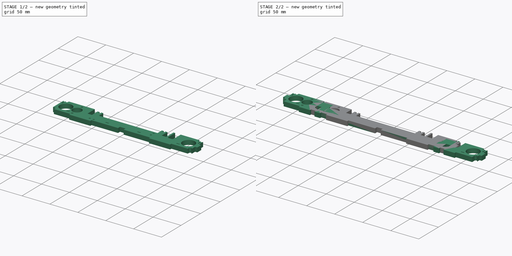
[diagram: build sequence overview — one tinted view per stage of 2, left to right]
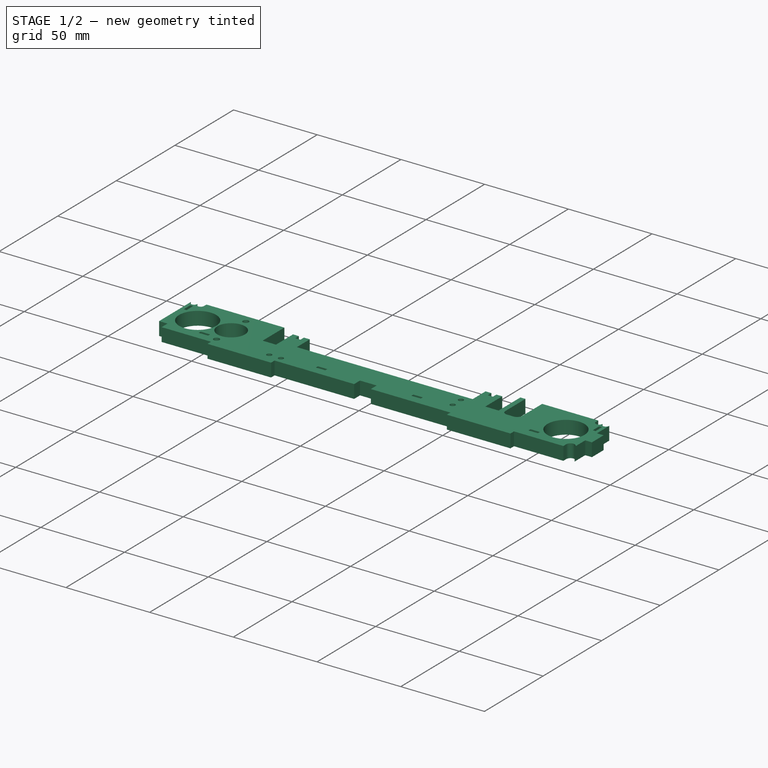
[diagram: stage 1 of 2 — iso view after this stage's code; geometry added in this stage tinted green]
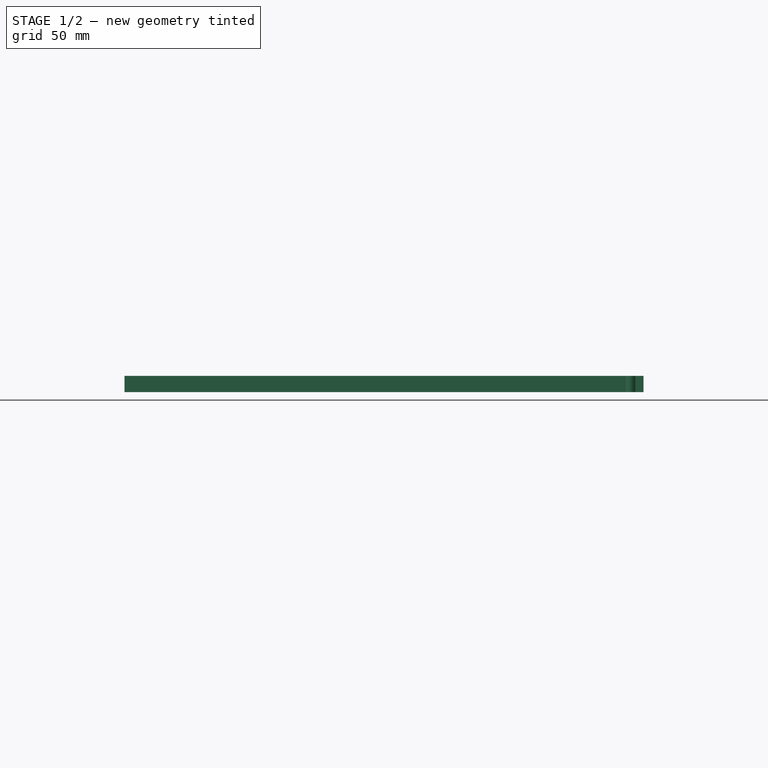
[diagram: stage 1 of 2 — front view after this stage's code; geometry added in this stage tinted green]
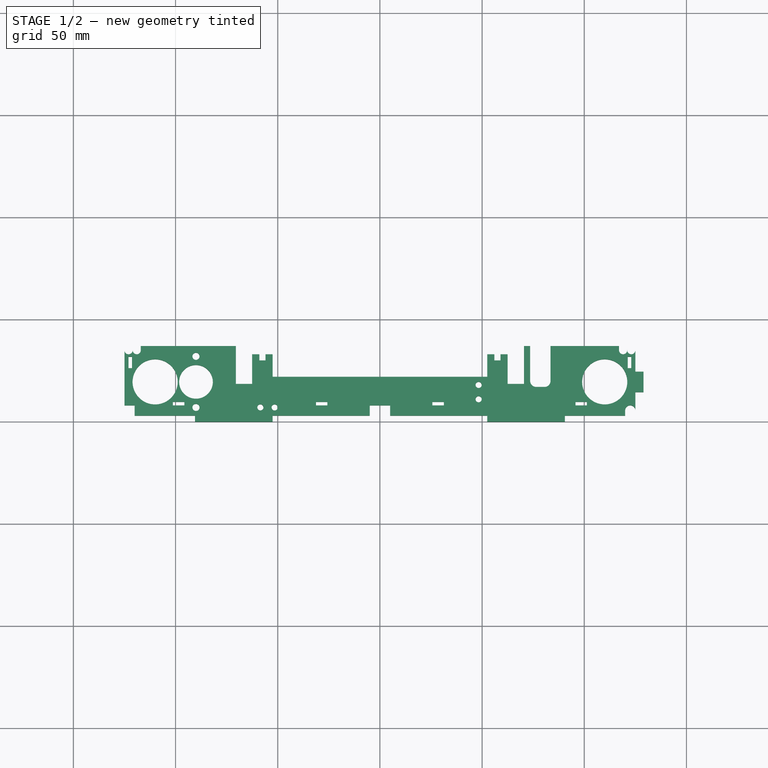
[diagram: stage 1 of 2 — top view after this stage's code; geometry added in this stage tinted green]
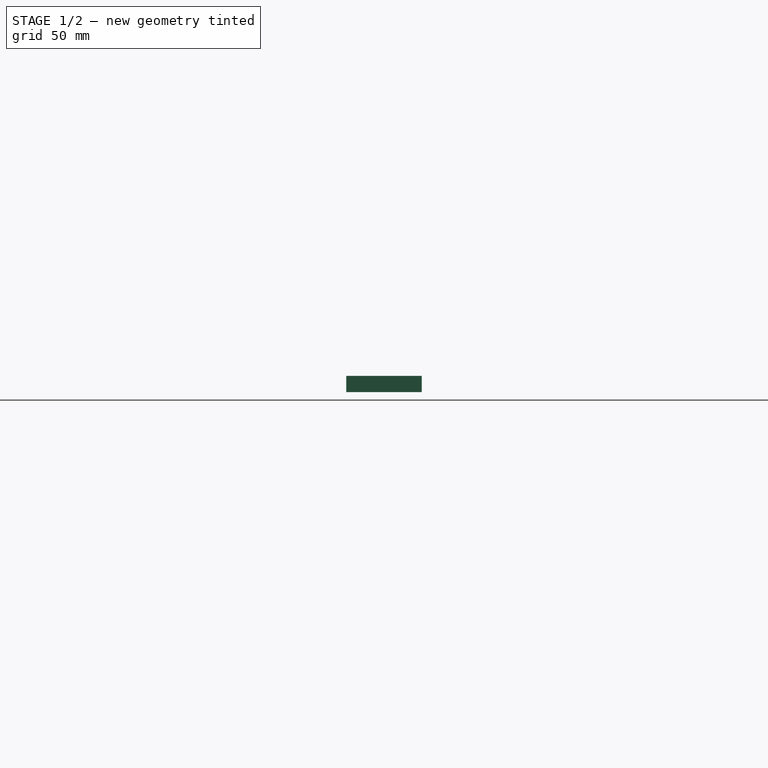
[diagram: stage 1 of 2 — right view after this stage's code; geometry added in this stage tinted green]
FCSTD DOCUMENT  (FreeCAD 0.19R24366 (Git))
Label: ri_scroll-supports-right
License: All rights reserved
LicenseURL: http://en.wikipedia.org/wiki/All_rights_reserved
objects: Sketcher::SketchObject×3, PartDesign::Pad×2, PartDesign::Body×2, App::Part×2, Part::Part2DObjectPython×1
note: 10 computed .brp shape members not serialized (recipe doc carries the construction recipe); baked Part::Feature solids carry a one-line shape summary decoded from their .brp

FEATURE [PartDesign::Body] Body  label="short-scroll"
  Group = -> [Sketch,Pad]
  Origin = -> Origin
  Placement = pos=(1,0,0) rot=(0,0,1;0rad)
  Tip = -> Pad
FEATURE [Sketcher::SketchObject] Sketch001
  FullyConstrained = true
  MapMode = 5
  Support = -> [XY_Plane001]
  sketch-geometry (101):
    g0: LineSegment StartX=125 StartY=35 StartZ=0 EndX=125 EndY=24.5 EndZ=0
    g1: LineSegment StartX=52.5 StartY=33 StartZ=0 EndX=52.5 EndY=22 EndZ=0
    g2: LineSegment StartX=52.5 StartY=22 StartZ=0 EndX=-52.5 EndY=22 EndZ=0
    g3: LineSegment StartX=-52.5 StartY=22 StartZ=0 EndX=-52.5 EndY=33 EndZ=0
    g4: LineSegment StartX=-62.5 StartY=33 StartZ=0 EndX=-62.5 EndY=18.5 EndZ=0
    g5: LineSegment StartX=-62.5 StartY=18.5 StartZ=0 EndX=-70.5 EndY=18.5 EndZ=0
    g6: LineSegment StartX=-70.5 StartY=18.5 StartZ=0 EndX=-70.5 EndY=37 EndZ=0
    g7: LineSegment StartX=70.5 StartY=37 StartZ=0 EndX=70.5 EndY=18.5 EndZ=0
    g8: LineSegment StartX=70.5 StartY=18.5 StartZ=0 EndX=62.5 EndY=18.5 EndZ=0
    g9: LineSegment StartX=62.5 StartY=18.5 StartZ=0 EndX=62.5 EndY=33 EndZ=0
    g10: Circle CenterX=-110 CenterY=19.5 CenterZ=0 NormalX=0 NormalY=0 NormalZ=1 AngleXU=0 Radius=11.05
    g11: Circle CenterX=110 CenterY=19.5 CenterZ=0 NormalX=0 NormalY=0 NormalZ=1 AngleXU=0 Radius=11.05
    g12: GeomPoint X=0 Y=22 Z=0
    g13: Circle CenterX=-90 CenterY=19.5 CenterZ=0 NormalX=0 NormalY=0 NormalZ=1 AngleXU=0 Radius=8.25
    g14: Circle CenterX=-90 CenterY=32 CenterZ=0 NormalX=0 NormalY=0 NormalZ=1 AngleXU=0 Radius=1.75
    g15: Circle CenterX=-90 CenterY=7 CenterZ=0 NormalX=0 NormalY=0 NormalZ=1 AngleXU=0 Radius=1.75
    g16: LineSegment StartX=125 StartY=24.5 StartZ=0 EndX=129 EndY=24.5 EndZ=0
    g17: LineSegment StartX=129 StartY=24.5 StartZ=0 EndX=129 EndY=14.5 EndZ=0
    g18: LineSegment StartX=129 StartY=14.5 StartZ=0 EndX=125 EndY=14.5 EndZ=0
    g19: LineSegment StartX=125 StartY=14.5 StartZ=0 EndX=125 EndY=5.5 EndZ=0
    g20: LineSegment StartX=-52.5 StartY=0 StartZ=0 EndX=-52.5 EndY=3 EndZ=0
    g21: LineSegment StartX=-52.5 StartY=3 StartZ=0 EndX=-5 EndY=3 EndZ=0
    g22: LineSegment StartX=52.5 StartY=3 StartZ=0 EndX=52.5 EndY=0 EndZ=0
    g23: LineSegment StartX=-5 StartY=3 StartZ=0 EndX=-5 EndY=8 EndZ=0
    g24: LineSegment StartX=-5 StartY=8 StartZ=0 EndX=5 EndY=8 EndZ=0
    g25: LineSegment StartX=5 StartY=8 StartZ=0 EndX=5 EndY=3 EndZ=0
    g26: LineSegment StartX=5 StartY=3 StartZ=0 EndX=52.5 EndY=3 EndZ=0
    g27: LineSegment StartX=-120 StartY=8 StartZ=0 EndX=-120 EndY=3 EndZ=0
    g28: LineSegment StartX=120 StartY=3 StartZ=0 EndX=120 EndY=5.5 EndZ=0
    g29: LineSegment StartX=-62.5 StartY=33 StartZ=0 EndX=-59 EndY=33 EndZ=0
    g30: LineSegment StartX=-59 StartY=33 StartZ=0 EndX=-59 EndY=30 EndZ=0
    g31: LineSegment StartX=-59 StartY=30 StartZ=0 EndX=-56 EndY=30 EndZ=0
    g32: LineSegment StartX=-56 StartY=30 StartZ=0 EndX=-56 EndY=33 EndZ=0
    g33: LineSegment StartX=-56 StartY=33 StartZ=0 EndX=-52.5 EndY=33 EndZ=0
    g34: LineSegment StartX=52.5 StartY=33 StartZ=0 EndX=56 EndY=33 EndZ=0
    g35: LineSegment StartX=56 StartY=33 StartZ=0 EndX=56 EndY=30 EndZ=0
    g36: LineSegment StartX=56 StartY=30 StartZ=0 EndX=59 EndY=30 EndZ=0
    g37: LineSegment StartX=59 StartY=30 StartZ=0 EndX=59 EndY=33 EndZ=0
    g38: LineSegment StartX=59 StartY=33 StartZ=0 EndX=62.5 EndY=33 EndZ=0
    g39: LineSegment StartX=70.5 StartY=37 StartZ=0 EndX=73.5 EndY=37 EndZ=0
    g40: LineSegment StartX=73.5 StartY=37 StartZ=0 EndX=73.5 EndY=20 EndZ=0
    g41: LineSegment StartX=76.5 StartY=17 StartZ=0 EndX=80.5 EndY=17 EndZ=0
    g42: LineSegment StartX=83.5 StartY=20 StartZ=0 EndX=83.5 EndY=37 EndZ=0
    g43: ArcOfCircle CenterX=80.5 CenterY=20 CenterZ=0 NormalX=0 NormalY=0 NormalZ=1 AngleXU=0 Radius=3 StartAngle=4.71239 EndAngle=6.28319
    g44: GeomPoint X=83.5 Y=17 Z=0
    g45: ArcOfCircle CenterX=76.5 CenterY=20 CenterZ=0 NormalX=0 NormalY=0 NormalZ=1 AngleXU=0 Radius=3 StartAngle=3.14159 EndAngle=4.71239
    g46: GeomPoint X=73.5 Y=17 Z=0
    g47: LineSegment StartX=-70.5 StartY=37 StartZ=0 EndX=-117 EndY=37 EndZ=0
    g48: LineSegment StartX=-117 StartY=37 StartZ=0 EndX=-117 EndY=35 EndZ=0
    g49: LineSegment StartX=-125 StartY=24.5 StartZ=0 EndX=-125 EndY=35 EndZ=0
    g50: ArcOfCircle CenterX=-123 CenterY=35 CenterZ=0 NormalX=0 NormalY=0 NormalZ=1 AngleXU=0 Radius=2 StartAngle=3.14159 EndAngle=6.28319
    g51: ArcOfCircle CenterX=-119 CenterY=35 CenterZ=0 NormalX=0 NormalY=0 NormalZ=1 AngleXU=0 Radius=2 StartAngle=3.14159 EndAngle=6.28319
    g52: LineSegment StartX=83.5 StartY=37 StartZ=0 EndX=117 EndY=37 EndZ=0
    g53: ArcOfCircle CenterX=123 CenterY=35 CenterZ=0 NormalX=0 NormalY=0 NormalZ=1 AngleXU=0 Radius=2 StartAngle=3.14159 EndAngle=6.28319
    g54: ArcOfCircle CenterX=119 CenterY=35 CenterZ=0 NormalX=0 NormalY=0 NormalZ=1 AngleXU=0 Radius=2 StartAngle=3.14159 EndAngle=6.28319
    g55: LineSegment StartX=117 StartY=37 StartZ=0 EndX=117 EndY=35 EndZ=0
    g56: ArcOfCircle CenterX=122.5 CenterY=5.5 CenterZ=0 NormalX=0 NormalY=0 NormalZ=1 AngleXU=0 Radius=2.5 StartAngle=6.28318 EndAngle=9.42478
    g57: LineSegment StartX=-123 StartY=31.8 StartZ=0 EndX=-121.3 EndY=31.8 EndZ=0
    g58: LineSegment StartX=-121.3 StartY=31.8 StartZ=0 EndX=-121.3 EndY=26.2 EndZ=0
    g59: LineSegment StartX=-121.3 StartY=26.2 StartZ=0 EndX=-123 EndY=26.2 EndZ=0
    g60: LineSegment StartX=-123 StartY=26.2 StartZ=0 EndX=-123 EndY=31.8 EndZ=0
    g61: LineSegment StartX=121.3 StartY=31.8 StartZ=0 EndX=123 EndY=31.8 EndZ=0
    g62: LineSegment StartX=123 StartY=31.8 StartZ=0 EndX=123 EndY=26.2 EndZ=0
    g63: LineSegment StartX=123 StartY=26.2 StartZ=0 EndX=121.3 EndY=26.2 EndZ=0
    g64: LineSegment StartX=121.3 StartY=26.2 StartZ=0 EndX=121.3 EndY=31.8 EndZ=0
    g65: LineSegment StartX=52.5 StartY=0 StartZ=0 EndX=90.5 EndY=0 EndZ=0
    g66: LineSegment StartX=90.5 StartY=0 StartZ=0 EndX=90.5 EndY=3 EndZ=0
    g67: LineSegment StartX=90.5 StartY=3 StartZ=0 EndX=120 EndY=3 EndZ=0
    g68: LineSegment StartX=95.7 StartY=9.7 StartZ=0 EndX=101.3 EndY=9.7 EndZ=0
    g69: LineSegment StartX=101.3 StartY=9.7 StartZ=0 EndX=101.3 EndY=8 EndZ=0
    g70: LineSegment StartX=101.3 StartY=8 StartZ=0 EndX=95.7 EndY=8 EndZ=0
    g71: LineSegment StartX=95.7 StartY=8 StartZ=0 EndX=95.7 EndY=9.7 EndZ=0
    g72: LineSegment StartX=-52.5 StartY=0 StartZ=0 EndX=-90.5 EndY=0 EndZ=0
    g73: LineSegment StartX=-90.5 StartY=0 StartZ=0 EndX=-90.5 EndY=3 EndZ=0
    g74: LineSegment StartX=-90.5 StartY=3 StartZ=0 EndX=-120 EndY=3 EndZ=0
    g75: LineSegment StartX=-101.3 StartY=9.7 StartZ=0 EndX=-95.7 EndY=9.7 EndZ=0
    g76: LineSegment StartX=-95.7 StartY=9.7 StartZ=0 EndX=-95.7 EndY=8 EndZ=0
    g77: LineSegment StartX=-95.7 StartY=8 StartZ=0 EndX=-101.3 EndY=8 EndZ=0
    g78: LineSegment StartX=-101.3 StartY=8 StartZ=0 EndX=-101.3 EndY=9.7 EndZ=0
    g79: GeomPoint X=-98.5 Y=8 Z=0
    g80: GeomPoint X=98.5 Y=8 Z=0
    g81: LineSegment StartX=-31.3 StartY=9.7 StartZ=0 EndX=-25.7 EndY=9.7 EndZ=0
    g82: LineSegment StartX=-25.7 StartY=9.7 StartZ=0 EndX=-25.7 EndY=8 EndZ=0
    g83: LineSegment StartX=-25.7 StartY=8 StartZ=0 EndX=-31.3 EndY=8 EndZ=0
    g84: LineSegment StartX=-31.3 StartY=8 StartZ=0 EndX=-31.3 EndY=9.7 EndZ=0
    g85: GeomPoint X=-28.5 Y=8 Z=0
    g86: LineSegment StartX=25.7 StartY=9.7 StartZ=0 EndX=31.3 EndY=9.7 EndZ=0
    g87: LineSegment StartX=31.3 StartY=9.7 StartZ=0 EndX=31.3 EndY=8 EndZ=0
    g88: LineSegment StartX=31.3 StartY=8 StartZ=0 EndX=25.7 EndY=8 EndZ=0
    g89: LineSegment StartX=25.7 StartY=8 StartZ=0 EndX=25.7 EndY=9.7 EndZ=0
    g90: GeomPoint X=28.5 Y=8 Z=0
    g91: GeomPoint X=-123 Y=29 Z=0
    g92: GeomPoint X=123 Y=29 Z=0
    g93: Circle CenterX=-58.5 CenterY=7 CenterZ=0 NormalX=0 NormalY=0 NormalZ=1 AngleXU=0 Radius=1.5
    g94: Circle CenterX=-51.5 CenterY=7 CenterZ=0 NormalX=0 NormalY=0 NormalZ=1 AngleXU=0 Radius=1.5
    g95: Circle CenterX=48.3 CenterY=18 CenterZ=0 NormalX=0 NormalY=0 NormalZ=1 AngleXU=0 Radius=1.5
    g96: Circle CenterX=48.3 CenterY=11 CenterZ=0 NormalX=0 NormalY=0 NormalZ=1 AngleXU=0 Radius=1.5
    g97: GeomPoint X=-55 Y=7 Z=0
    g98: GeomPoint X=48.3 Y=14.5 Z=0
    g99: LineSegment StartX=-125 StartY=24.5 StartZ=0 EndX=-125 EndY=8 EndZ=0
    g100: LineSegment StartX=-125 StartY=8 StartZ=0 EndX=-120 EndY=8 EndZ=0
  constraints (274):
    c: Vertical(g0)
    c: Coincident(g1,g2)
    c: Coincident(g2,g3)
    c: Horizontal(g2)
    c: Vertical(g1)
    c: Vertical(g3)
    c: Coincident(g4,g5)
    c: Coincident(g5,g6)
    c: Horizontal(g5)
    c: Vertical(g4)
    c: Vertical(g6)
    c: Coincident(g7,g8)
    c: Coincident(g8,g9)
    c: Horizontal(g8)
    c: Vertical(g7)
    c: Vertical(g9)
    c: Equal(g5,g8)
    c: DistanceX(g8,g8) = 8
    c: DistanceY(g7,g7) = 18.5
    c: Equal(g10,g11)
    c: Diameter(g11) = 22.1
    c: DistanceX(g11,g0) = 15
    c: DistanceY(g11,g10) = 0
    c: DistanceX(g2,g2) = 105
    c: DistanceX(g4,g3) = 10
    c: Symmetric(g2,g1,g12)
    c: Diameter(g13) = 16.5
    c: Diameter(g14) = 3.5
    c: Symmetric(g15,g14,g13)
    c: DistanceX(g10,g13) = 20
    c: DistanceX(g10,g14) = 20
    c: Coincident(g16,g17)
    c: Coincident(g17,g18)
    c: Horizontal(g16)
    c: Horizontal(g18)
    c: Vertical(g17)
    c: DistanceX(g16,g16) = 4
    c: DistanceY(g17,g17) = 10
    c: DistanceY(g16,g0) = 10.5
    c: Coincident(g0,g16)
    c: Coincident(g18,g19)
    c: Vertical(g20)
    c: Coincident(g20,g21)
    c: Horizontal(g21)
    c: Coincident(g26,g22)
    c: DistanceY(g22,g22) = 3
    c: Symmetric(g22,g20,g-1)
    c: Vertical(g23)
    c: Coincident(g23,g24)
    c: Horizontal(g24)
    c: Coincident(g24,g25)
    c: Vertical(g25)
    c: Symmetric(g25,g23,g-2)
    c: DistanceY(g25,g25) = 5
    c: DistanceX(g24,g24) = 10
    c: Coincident(g21,g23)
    c: PointOnObject(g26,g25)
    c: Tangent(g21,g26)
    c: Vertical(g27)
    c: Vertical(g28)
    c: DistanceX(g28,g19) = 5
    c: DistanceY(g28,g28) = 2.5
    c: Symmetric(g27,g28,g-2)
    c: DistanceX(g49,g10) = 15
    c: DistanceY(g13,g10) = 0
    c: DistanceY(g15,g14) = 25
    c: Tangent(g22,g1)
    c: Tangent(g19,g0)
    c: DistanceY(g4,g6) = 4
    c: DistanceY(g4,g3) = 0
    c: Equal(g6,g7)
    c: Equal(g1,g3)
    c: DistanceY(g1,g9) = 0
    c: Equal(g9,g4)
    c: Equal(g15,g14)
    c: Coincident(g4,g29)
    c: Horizontal(g29)
    c: Coincident(g29,g30)
    c: Vertical(g30)
    c: Coincident(g30,g31)
    c: Horizontal(g31)
    c: Coincident(g31,g32)
    c: Vertical(g32)
    c: Coincident(g32,g33)
    c: Coincident(g33,g3)
    c: Horizontal(g33)
    c: DistanceX(g31,g31) = 3
    c: Equal(g31,g30)
    c: Equal(g33,g29)
    c: Coincident(g1,g34)
    c: Horizontal(g34)
    c: Coincident(g34,g35)
    c: Vertical(g35)
    c: Coincident(g35,g36)
    c: Horizontal(g36)
    c: Coincident(g36,g37)
    c: Vertical(g37)
    c: Coincident(g37,g38)
    c: Coincident(g38,g9)
    c: Horizontal(g38)
    c: Equal(g35,g36)
    c: Equal(g37,g31)
    c: Equal(g38,g34)
    c: Equal(g34,g29)
    c: Coincident(g7,g39)
    c: Horizontal(g39)
    c: Coincident(g39,g40)
    c: Vertical(g40)
    c: Horizontal(g41)
    c: Vertical(g42)
    c: DistanceX(g39,g39) = 3
    c: DistanceY(g46,g1) = 5
    c: PointOnObject(g44,g41)
    c: PointOnObject(g44,g42)
    c: Tangent(g41,g43) = -1.5708
    c: Tangent(g42,g43) = -1.5708
    c: PointOnObject(g46,g40)
    c: PointOnObject(g46,g41)
    c: Tangent(g40,g45) = -1.5708
    c: Tangent(g41,g45) = -1.5708
    c: Radius(g43) = 3
    c: Equal(g45,g43)
    c: DistanceX(g40,g42) = 10
    c: Equal(g42,g40)
    c: Coincident(g6,g47)
    c: Horizontal(g47)
    c: Coincident(g48,g47)
    c: Vertical(g48)
    c: Vertical(g49)
    c: Horizontal(g49,g48)
    c: DistanceY(g48,g48) = 2
    c: Coincident(g51,g50)
    c: Radius(g50) = 2
    c: DistanceY(g49,g47) = 12.5
    c: Symmetric(g48,g49,g50)
    c: Tangent(g49,g50) = 1.5708
    c: Tangent(g51,g48) = 1.5708
    c: DistanceY(g17,g11) = 5
    c: Coincident(g52,g42)
    c: Horizontal(g52)
    c: Tangent(g53,g0) = 1.5708
    c: Coincident(g55,g52)
    c: Vertical(g55)
    c: Equal(g48,g55)
    c: Coincident(g54,g55)
    c: Symmetric(g0,g54,g53)
    c: Tangent(g54,g53) = 1.5708
    c: DistanceY(g28,g52) = 34
    c: Horizontal(g0,g53)
    c: Radius(g54) = 2
    c: Horizontal(g19,g28)
    c: Coincident(g56,g28)
    c: Coincident(g56,g19)
    c: Tangent(g28,g56)
    c: Coincident(g57,g58)
    c: Coincident(g58,g59)
    c: Coincident(g59,g60)
    c: Coincident(g60,g57)
    c: Horizontal(g57)
    c: Horizontal(g59)
    c: Vertical(g58)
    c: Vertical(g60)
    c: DistanceY(g58,g58) = 5.6
    c: DistanceX(g57,g57) = 1.7
    c: DistanceX(g49,g59) = 2
    c: Coincident(g61,g62)
    c: Coincident(g62,g63)
    c: Coincident(g63,g64)
    c: Coincident(g64,g61)
    c: Horizontal(g61)
    c: Horizontal(g63)
    c: Vertical(g62)
    c: Vertical(g64)
    c: Equal(g64,g58)
    c: Equal(g57,g61)
    c: DistanceX(g62,g0) = 2
    c: Coincident(g22,g65)
    c: PointOnObject(g65,g-1)
    c: Horizontal(g65)
    c: Coincident(g65,g66)
    c: Vertical(g66)
    c: Coincident(g66,g67)
    c: Horizontal(g67)
    c: Equal(g66,g22)
    c: Coincident(g67,g28)
    c: Coincident(g68,g69)
    c: Coincident(g69,g70)
    c: Coincident(g70,g71)
    c: Coincident(g71,g68)
    c: Horizontal(g68)
    c: Horizontal(g70)
    c: Vertical(g69)
    c: Vertical(g71)
    c: Equal(g62,g70)
    c: Equal(g63,g69)
    c: DistanceY(g28,g69) = 5
    c: Coincident(g20,g72)
    c: PointOnObject(g72,g-1)
    c: Coincident(g72,g73)
    c: Vertical(g73)
    c: Coincident(g73,g74)
    c: Coincident(g74,g27)
    c: Horizontal(g74)
    c: Coincident(g75,g76)
    c: Coincident(g76,g77)
    c: Coincident(g77,g78)
    c: Coincident(g78,g75)
    c: Horizontal(g75)
    c: Horizontal(g77)
    c: Vertical(g76)
    c: Vertical(g78)
    c: Equal(g77,g58)
    c: Equal(g78,g59)
    c: DistanceX(g7,g65) = 20
    c: DistanceX(g73,g5) = 20
    c: DistanceY(g73,g76) = 5
    c: DistanceY(g3,g3) = 11
    c: Symmetric(g77,g76,g79)
    c: Symmetric(g70,g69,g80)
    c: DistanceX(g66,g80) = 8
    c: DistanceX(g79,g73) = 8
    c: Vertical(g-1,g12)
    c: Coincident(g81,g82)
    c: Coincident(g82,g83)
    c: Coincident(g83,g84)
    c: Coincident(g84,g81)
    c: Horizontal(g81)
    c: Horizontal(g83)
    c: Vertical(g82)
    c: Vertical(g84)
    c: Symmetric(g83,g82,g85)
    c: Equal(g83,g75)
    c: Equal(g84,g78)
    c: DistanceX(g20,g85) = 24
    c: DistanceY(g20,g85) = 5
    c: Coincident(g86,g87)
    c: Coincident(g87,g88)
    c: Coincident(g88,g89)
    c: Coincident(g89,g86)
    c: Horizontal(g86)
    c: Horizontal(g88)
    c: Vertical(g87)
    c: Vertical(g89)
    c: Symmetric(g88,g87,g90)
    c: DistanceX(g90,g22) = 24
    c: DistanceY(g22,g90) = 5
    c: Equal(g89,g82)
    c: Equal(g88,g83)
    c: Symmetric(g57,g59,g91)
    c: DistanceY(g49,g91) = 4.5
    c: Symmetric(g62,g61,g92)
    c: DistanceY(g0,g92) = 4.5
    c: Diameter(g93) = 3
    c: Equal(g94,g93)
    c: Equal(g93,g96)
    c: Equal(g96,g95)
    c: Horizontal(g93,g97)
    c: Symmetric(g93,g94,g97)
    c: DistanceX(g93,g94) = 7
    c: DistanceY(g97,g2) = 15
    c: Vertical(g96,g98)
    c: Symmetric(g95,g96,g98)
    c: DistanceY(g96,g95) = 7
    c: DistanceY(g98,g1) = 7.5
    c: DistanceX(g4,g97) = 7.5
    c: DistanceX(g98,g8) = 14.2
    c: Coincident(g49,g99)
    c: Vertical(g99)
    c: Coincident(g99,g100)
    c: Horizontal(g100)
    c: Coincident(g27,g100)
    c: Equal(g27,g100)
    c: DistanceX(g100,g100) = 5
    c: DistanceX(g99,g19) = 250
FEATURE [PartDesign::Pad] Pad001
  Direction = (0,0,0)
  Length = 8
  Length2 = 100
  Profile = -> Sketch001
  Refine = true
  Type = 0
FEATURE [PartDesign::Body] Body001  label="long-scroll"
  Group = -> [Sketch001,Pad001]
  Origin = -> Origin001
  Placement = pos=(-12,0,133) rot=(0,1,0;1.5708rad)
  Tip = -> Pad001
FEATURE [App::Part] Part  label="verts"
  Group = -> [Body]
  Origin = -> Origin002
  Placement = pos=(218,-63,0) rot=(1,0,0;0rad)
FEATURE [App::Part] Part001  label="horz"
  Group = -> [Body001]
  Origin = -> Origin003
  Placement = pos=(112,0,0) rot=(1,0,0;0rad)
FEATURE [Part::Part2DObjectPython] Shape2DView  # Draft 2D object (typed FeaturePython)
  Base = -> Body001
  FuseArch = false
  HiddenLines = false
  InPlace = true
  Projection = (1,0,0)
  ProjectionMode = 0
  SegmentLength = 0.05
  Tessellation = false
  VisibleOnly = false
FEATURE [Sketcher::SketchObject] Sketch002
  FullyConstrained = false
  sketch-geometry (89):
    g0: LineSegment StartX=62.5 StartY=-37 StartZ=0 EndX=59.5 EndY=-37 EndZ=0
    g1: LineSegment StartX=59.5 StartY=-37 StartZ=0 EndX=59.5 EndY=-20 EndZ=0
    g2: ArcOfCircle CenterX=56.5 CenterY=-20 CenterZ=0 NormalX=0 NormalY=0 NormalZ=1 AngleXU=-3.14159 Radius=3 StartAngle=3.14159 EndAngle=4.71239
    g3: LineSegment StartX=56.5 StartY=-17 StartZ=0 EndX=52.5 EndY=-17 EndZ=0
    g4: ArcOfCircle CenterX=52.5 CenterY=-20 CenterZ=0 NormalX=0 NormalY=0 NormalZ=1 AngleXU=-3.14159 Radius=3 StartAngle=4.71239 EndAngle=6.28319
    g5: LineSegment StartX=49.5 StartY=-20 StartZ=0 EndX=49.5 EndY=-37 EndZ=0
    g6: LineSegment StartX=49.5 StartY=-37 StartZ=0 EndX=16 EndY=-37 EndZ=0
    g7: LineSegment StartX=16 StartY=-37 StartZ=0 EndX=16 EndY=-35 EndZ=0
    g8: ArcOfCircle CenterX=14 CenterY=-35 CenterZ=0 NormalX=0 NormalY=0 NormalZ=1 AngleXU=-3.14159 Radius=2 StartAngle=3.14159 EndAngle=6.28319
    g9: ArcOfCircle CenterX=10 CenterY=-35 CenterZ=0 NormalX=0 NormalY=0 NormalZ=1 AngleXU=-3.14159 Radius=2 StartAngle=3.14159 EndAngle=6.28319
    g10: LineSegment StartX=8 StartY=-35 StartZ=0 EndX=8 EndY=-24.5 EndZ=0
    g11: LineSegment StartX=8 StartY=-24.5 StartZ=0 EndX=4 EndY=-24.5 EndZ=0
    g12: LineSegment StartX=4 StartY=-24.5 StartZ=0 EndX=4 EndY=-14.5 EndZ=0
    g13: LineSegment StartX=4 StartY=-14.5 StartZ=0 EndX=8 EndY=-14.5 EndZ=0
    g14: LineSegment StartX=8 StartY=-14.5 StartZ=0 EndX=8 EndY=-5.5 EndZ=0
    g15: ArcOfCircle CenterX=10.5 CenterY=-5.5 CenterZ=0 NormalX=0 NormalY=0 NormalZ=1 AngleXU=-3.14159 Radius=2.5 StartAngle=-2.4e-14 EndAngle=3.14159
    g16: LineSegment StartX=13 StartY=-3 StartZ=0 EndX=13 EndY=-5.5 EndZ=0
    g17: LineSegment StartX=42.5 StartY=-3 StartZ=0 EndX=13 EndY=-3 EndZ=0
    g18: LineSegment StartX=42.5 StartY=0 StartZ=0 EndX=42.5 EndY=-3 EndZ=0
    g19: LineSegment StartX=80.5 StartY=0 StartZ=0 EndX=42.5 EndY=0 EndZ=0
    g20: LineSegment StartX=80.5 StartY=-3 StartZ=0 EndX=80.5 EndY=0 EndZ=0
    g21: LineSegment StartX=128 StartY=-3 StartZ=0 EndX=80.5 EndY=-3 EndZ=0
    g22: LineSegment StartX=128 StartY=-8 StartZ=0 EndX=128 EndY=-3 EndZ=0
    g23: LineSegment StartX=138 StartY=-8 StartZ=0 EndX=128 EndY=-8 EndZ=0
    g24: LineSegment StartX=138 StartY=-3 StartZ=0 EndX=138 EndY=-8 EndZ=0
    g25: LineSegment StartX=185.5 StartY=-3 StartZ=0 EndX=138 EndY=-3 EndZ=0
    g26: LineSegment StartX=185.5 StartY=0 StartZ=0 EndX=185.5 EndY=-3 EndZ=0
    g27: LineSegment StartX=185.5 StartY=0 StartZ=0 EndX=223.5 EndY=0 EndZ=0
    g28: LineSegment StartX=223.5 StartY=0 StartZ=0 EndX=223.5 EndY=-3 EndZ=0
    g29: LineSegment StartX=223.5 StartY=-3 StartZ=0 EndX=253 EndY=-3 EndZ=0
    g30: LineSegment StartX=253 StartY=-8 StartZ=0 EndX=253 EndY=-3 EndZ=0
    g31: LineSegment StartX=258 StartY=-8 StartZ=0 EndX=253 EndY=-8 EndZ=0
    g32: LineSegment StartX=62.5 StartY=-37 StartZ=0 EndX=62.5 EndY=-18.5 EndZ=0
    g33: ArcOfCircle CenterX=256 CenterY=-35 CenterZ=0 NormalX=0 NormalY=0 NormalZ=1 AngleXU=-3.14159 Radius=2 StartAngle=3.14159 EndAngle=6.28319
    g34: ArcOfCircle CenterX=252 CenterY=-35 CenterZ=0 NormalX=0 NormalY=0 NormalZ=1 AngleXU=-3.14159 Radius=2 StartAngle=3.14159 EndAngle=6.28319
    g35: LineSegment StartX=250 StartY=-37 StartZ=0 EndX=250 EndY=-35 EndZ=0
    g36: LineSegment StartX=203.5 StartY=-37 StartZ=0 EndX=250 EndY=-37 EndZ=0
    g37: LineSegment StartX=203.5 StartY=-18.5 StartZ=0 EndX=203.5 EndY=-37 EndZ=0
    g38: LineSegment StartX=195.5 StartY=-18.5 StartZ=0 EndX=203.5 EndY=-18.5 EndZ=0
    g39: LineSegment StartX=195.5 StartY=-33 StartZ=0 EndX=195.5 EndY=-18.5 EndZ=0
    g40: LineSegment StartX=195.5 StartY=-33 StartZ=0 EndX=192 EndY=-33 EndZ=0
    g41: LineSegment StartX=192 StartY=-33 StartZ=0 EndX=192 EndY=-30 EndZ=0
    g42: LineSegment StartX=192 StartY=-30 StartZ=0 EndX=189 EndY=-30 EndZ=0
    g43: LineSegment StartX=189 StartY=-30 StartZ=0 EndX=189 EndY=-33 EndZ=0
    g44: LineSegment StartX=189 StartY=-33 StartZ=0 EndX=185.5 EndY=-33 EndZ=0
    g45: LineSegment StartX=185.5 StartY=-22 StartZ=0 EndX=185.5 EndY=-33 EndZ=0
    g46: LineSegment StartX=80.5 StartY=-22 StartZ=0 EndX=185.5 EndY=-22 EndZ=0
    g47: LineSegment StartX=80.5 StartY=-33 StartZ=0 EndX=80.5 EndY=-22 EndZ=0
    g48: LineSegment StartX=80.5 StartY=-33 StartZ=0 EndX=77 EndY=-33 EndZ=0
    g49: LineSegment StartX=77 StartY=-33 StartZ=0 EndX=77 EndY=-30 EndZ=0
    g50: LineSegment StartX=77 StartY=-30 StartZ=0 EndX=74 EndY=-30 EndZ=0
    g51: LineSegment StartX=74 StartY=-30 StartZ=0 EndX=74 EndY=-33 EndZ=0
    g52: LineSegment StartX=74 StartY=-33 StartZ=0 EndX=70.5 EndY=-33 EndZ=0
    g53: LineSegment StartX=70.5 StartY=-18.5 StartZ=0 EndX=70.5 EndY=-33 EndZ=0
    g54: LineSegment StartX=62.5 StartY=-18.5 StartZ=0 EndX=70.5 EndY=-18.5 EndZ=0
    g55: Circle CenterX=243 CenterY=-19.5 CenterZ=0 NormalX=0 NormalY=0 NormalZ=1 AngleXU=-3.14159 Radius=11.05
    g56: Circle CenterX=23 CenterY=-19.5 CenterZ=0 NormalX=0 NormalY=0 NormalZ=1 AngleXU=-3.14159 Radius=11.05
    g57: Circle CenterX=223 CenterY=-19.5 CenterZ=0 NormalX=0 NormalY=0 NormalZ=1 AngleXU=-3.14159 Radius=8.25
    g58: LineSegment StartX=11.7 StartY=-26.2 StartZ=0 EndX=11.7 EndY=-31.8 EndZ=0
    g59: LineSegment StartX=10 StartY=-26.2 StartZ=0 EndX=11.7 EndY=-26.2 EndZ=0
    g60: LineSegment StartX=10 StartY=-31.8 StartZ=0 EndX=10 EndY=-26.2 EndZ=0
    g61: LineSegment StartX=11.7 StartY=-31.8 StartZ=0 EndX=10 EndY=-31.8 EndZ=0
    g62: LineSegment StartX=164.3 StartY=-8 StartZ=0 EndX=164.3 EndY=-9.7 EndZ=0
    g63: LineSegment StartX=158.7 StartY=-8 StartZ=0 EndX=164.3 EndY=-8 EndZ=0
    g64: LineSegment StartX=158.7 StartY=-9.7 StartZ=0 EndX=158.7 EndY=-8 EndZ=0
    g65: LineSegment StartX=164.3 StartY=-9.7 StartZ=0 EndX=158.7 EndY=-9.7 EndZ=0
    g66: LineSegment StartX=107.3 StartY=-8 StartZ=0 EndX=107.3 EndY=-9.7 EndZ=0
    g67: LineSegment StartX=101.7 StartY=-8 StartZ=0 EndX=107.3 EndY=-8 EndZ=0
    g68: LineSegment StartX=101.7 StartY=-9.7 StartZ=0 EndX=101.7 EndY=-8 EndZ=0
    g69: LineSegment StartX=107.3 StartY=-9.7 StartZ=0 EndX=101.7 EndY=-9.7 EndZ=0
    g70: LineSegment StartX=256 StartY=-26.2 StartZ=0 EndX=256 EndY=-31.8 EndZ=0
    g71: LineSegment StartX=254.3 StartY=-26.2 StartZ=0 EndX=256 EndY=-26.2 EndZ=0
    g72: LineSegment StartX=254.3 StartY=-31.8 StartZ=0 EndX=254.3 EndY=-26.2 EndZ=0
    g73: LineSegment StartX=256 StartY=-31.8 StartZ=0 EndX=254.3 EndY=-31.8 EndZ=0
    g74: LineSegment StartX=234.3 StartY=-8 StartZ=0 EndX=234.3 EndY=-9.7 EndZ=0
    g75: LineSegment StartX=228.7 StartY=-8 StartZ=0 EndX=234.3 EndY=-8 EndZ=0
    g76: LineSegment StartX=228.7 StartY=-9.7 StartZ=0 EndX=228.7 EndY=-8 EndZ=0
    g77: LineSegment StartX=234.3 StartY=-9.7 StartZ=0 EndX=228.7 EndY=-9.7 EndZ=0
    g78: LineSegment StartX=37.3 StartY=-8 StartZ=0 EndX=37.3 EndY=-9.7 EndZ=0
    g79: LineSegment StartX=31.7 StartY=-8 StartZ=0 EndX=37.3 EndY=-8 EndZ=0
    g80: LineSegment StartX=31.7 StartY=-9.7 StartZ=0 EndX=31.7 EndY=-8 EndZ=0
    g81: LineSegment StartX=37.3 StartY=-9.7 StartZ=0 EndX=31.7 EndY=-9.7 EndZ=0
    g82: Circle CenterX=223 CenterY=-32 CenterZ=0 NormalX=0 NormalY=0 NormalZ=1 AngleXU=-3.14159 Radius=1.75
    g83: Circle CenterX=223 CenterY=-7 CenterZ=0 NormalX=0 NormalY=0 NormalZ=1 AngleXU=-3.14159 Radius=1.75
    g84: Circle CenterX=191.5 CenterY=-7 CenterZ=0 NormalX=0 NormalY=0 NormalZ=1 AngleXU=-3.14159 Radius=1.5
    g85: Circle CenterX=184.5 CenterY=-7 CenterZ=0 NormalX=0 NormalY=0 NormalZ=1 AngleXU=-3.14159 Radius=1.5
    g86: Circle CenterX=84.7 CenterY=-18 CenterZ=0 NormalX=0 NormalY=0 NormalZ=1 AngleXU=-3.14159 Radius=1.5
    g87: Circle CenterX=84.7 CenterY=-11 CenterZ=0 NormalX=0 NormalY=0 NormalZ=1 AngleXU=-3.14159 Radius=1.5
    g88: LineSegment StartX=258 StartY=-8 StartZ=0 EndX=258 EndY=-35 EndZ=0
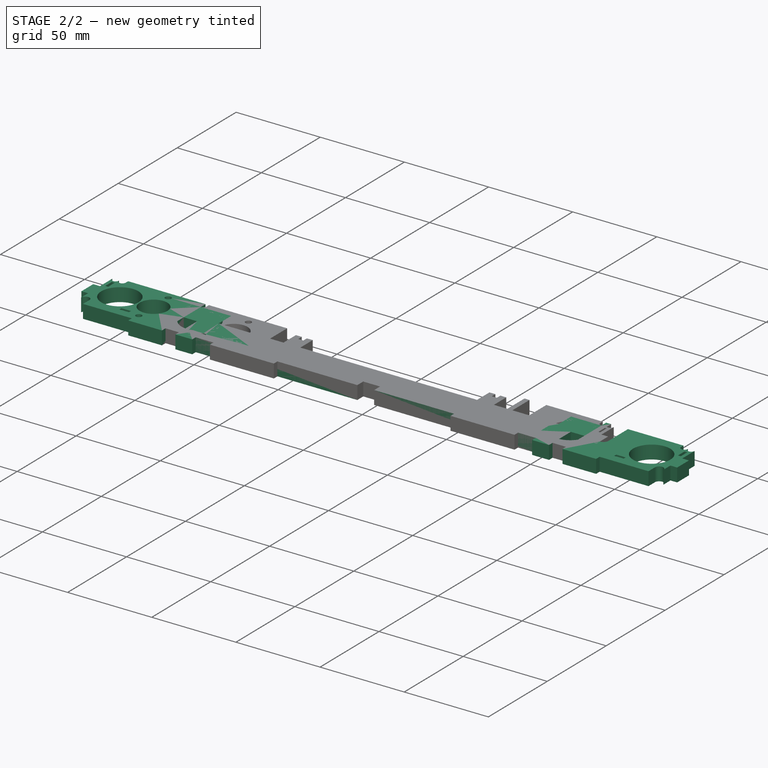
[diagram: stage 2 of 2 — iso view after this stage's code; geometry added in this stage tinted green]
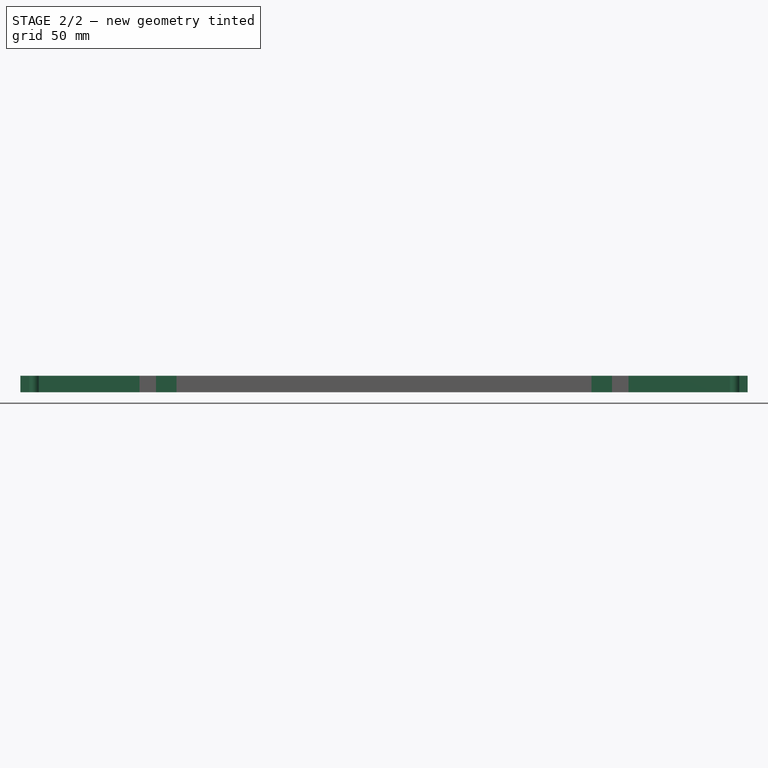
[diagram: stage 2 of 2 — front view after this stage's code; geometry added in this stage tinted green]
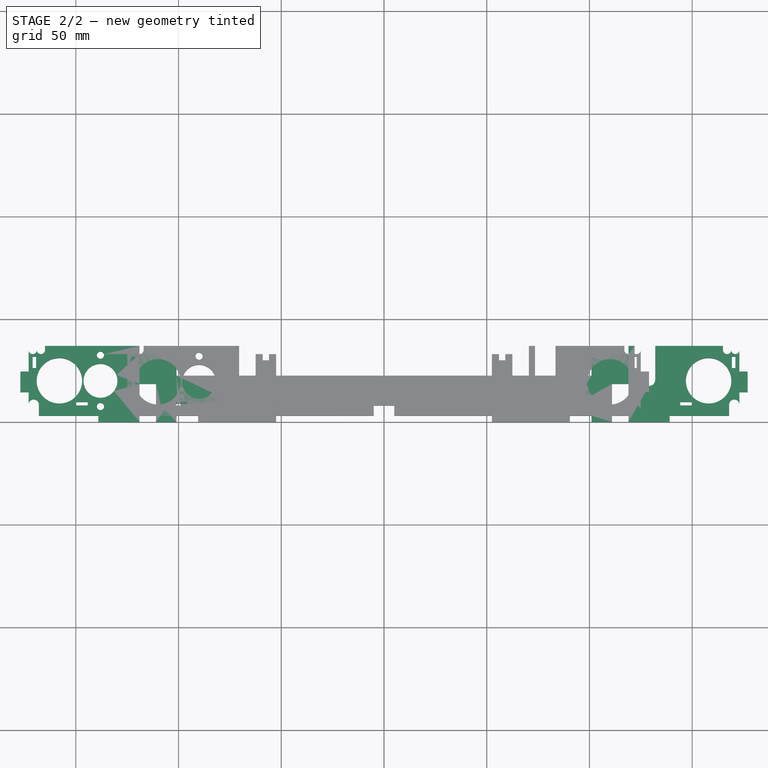
[diagram: stage 2 of 2 — top view after this stage's code; geometry added in this stage tinted green]
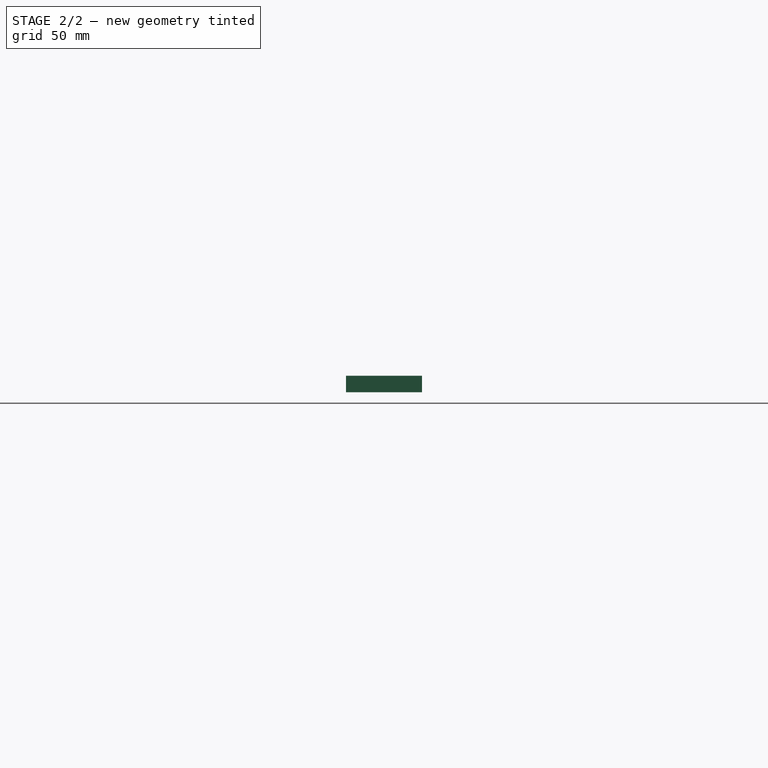
[diagram: stage 2 of 2 — right view after this stage's code; geometry added in this stage tinted green]
FEATURE [Sketcher::SketchObject] Sketch
  FullyConstrained = true
  MapMode = 5
  Support = -> [XY_Plane]
  sketch-geometry (101):
    g0: LineSegment StartX=173 StartY=35 StartZ=0 EndX=173 EndY=24.5 EndZ=0
    g1: LineSegment StartX=-173 StartY=8.5 StartZ=0 EndX=-173 EndY=14.5 EndZ=0
    g2: LineSegment StartX=101 StartY=33 StartZ=0 EndX=101 EndY=22.5 EndZ=0
    g3: LineSegment StartX=-101 StartY=22.5 StartZ=0 EndX=-101 EndY=33 EndZ=0
    g4: LineSegment StartX=-119 StartY=18.5 StartZ=0 EndX=-111 EndY=18.5 EndZ=0
    g5: LineSegment StartX=-111 StartY=18.5 StartZ=0 EndX=-111 EndY=0 EndZ=0
    g6: LineSegment StartX=-119 StartY=0 StartZ=0 EndX=-119 EndY=18.5 EndZ=0
    g7: LineSegment StartX=111 StartY=0 StartZ=0 EndX=111 EndY=18.5 EndZ=0
    g8: LineSegment StartX=111 StartY=0 StartZ=0 EndX=101 EndY=0 EndZ=0
    g9: Circle CenterX=-158 CenterY=20 CenterZ=0 NormalX=0 NormalY=0 NormalZ=1 AngleXU=0 Radius=11.05
    g10: Circle CenterX=158 CenterY=20 CenterZ=0 NormalX=0 NormalY=0 NormalZ=1 AngleXU=0 Radius=11.05
    g11: LineSegment StartX=-101 StartY=22.5 StartZ=0 EndX=101 EndY=22.5 EndZ=0
    g12: LineSegment StartX=132 StartY=37 StartZ=0 EndX=132 EndY=20.5 EndZ=0
    g13: LineSegment StartX=129 StartY=17.5 StartZ=0 EndX=125 EndY=17.5 EndZ=0
    g14: LineSegment StartX=122 StartY=20.5 StartZ=0 EndX=122 EndY=37 EndZ=0
    g15: GeomPoint X=127 Y=17.5 Z=0
    g16: GeomPoint X=0 Y=22.5 Z=0
    g17: Circle CenterX=-138 CenterY=20 CenterZ=0 NormalX=0 NormalY=0 NormalZ=1 AngleXU=0 Radius=8.25
    g18: LineSegment StartX=168 StartY=8.5 StartZ=0 EndX=168 EndY=3 EndZ=0
    g19: Circle CenterX=-138 CenterY=7.5 CenterZ=0 NormalX=0 NormalY=0 NormalZ=1 AngleXU=0 Radius=1.75
    g20: Circle CenterX=-138 CenterY=32.5 CenterZ=0 NormalX=0 NormalY=0 NormalZ=1 AngleXU=0 Radius=1.75
    g21: LineSegment StartX=-101 StartY=1e-16 StartZ=0 EndX=-101 EndY=3 EndZ=0
    g22: LineSegment StartX=-101 StartY=3 StartZ=0 EndX=-5 EndY=3 EndZ=0
    g23: LineSegment StartX=101 StartY=3 StartZ=0 EndX=101 EndY=0 EndZ=0
    g24: LineSegment StartX=-101 StartY=1e-16 StartZ=0 EndX=-111 EndY=0 EndZ=0
    g25: LineSegment StartX=-5 StartY=3 StartZ=0 EndX=-5 EndY=8 EndZ=0
    g26: LineSegment StartX=-5 StartY=8 StartZ=0 EndX=5 EndY=8 EndZ=0
    g27: LineSegment StartX=5 StartY=8 StartZ=0 EndX=5 EndY=3 EndZ=0
    g28: LineSegment StartX=5 StartY=3 StartZ=0 EndX=101 EndY=3 EndZ=0
    g29: LineSegment StartX=-173 StartY=24.5 StartZ=0 EndX=-177 EndY=24.5 EndZ=0
    g30: LineSegment StartX=-177 StartY=24.5 StartZ=0 EndX=-177 EndY=14.5 EndZ=0
    g31: LineSegment StartX=-177 StartY=14.5 StartZ=0 EndX=-173 EndY=14.5 EndZ=0
    g32: LineSegment StartX=-173 StartY=24.5 StartZ=0 EndX=-173 EndY=35 EndZ=0
    g33: LineSegment StartX=173 StartY=24.5 StartZ=0 EndX=177 EndY=24.5 EndZ=0
    g34: LineSegment StartX=177 StartY=24.5 StartZ=0 EndX=177 EndY=14.5 EndZ=0
    g35: LineSegment StartX=177 StartY=14.5 StartZ=0 EndX=173 EndY=14.5 EndZ=0
    g36: LineSegment StartX=173 StartY=14.5 StartZ=0 EndX=173 EndY=8.5 EndZ=0
    g37: LineSegment StartX=-165 StartY=37 StartZ=0 EndX=-119 EndY=37 EndZ=0
    g38: LineSegment StartX=-119 StartY=37 StartZ=0 EndX=-119 EndY=33 EndZ=0
    g39: LineSegment StartX=-119 StartY=33 StartZ=0 EndX=-101 EndY=33 EndZ=0
    g40: LineSegment StartX=101 StartY=33 StartZ=0 EndX=119 EndY=33 EndZ=0
    g41: LineSegment StartX=119 StartY=33 StartZ=0 EndX=119 EndY=37 EndZ=0
    g42: LineSegment StartX=119 StartY=37 StartZ=0 EndX=122 EndY=37 EndZ=0
    g43: LineSegment StartX=132 StartY=37 StartZ=0 EndX=165 EndY=37 EndZ=0
    g44: LineSegment StartX=165 StartY=37 StartZ=0 EndX=165 EndY=35 EndZ=0
    g45: ArcOfCircle CenterX=167 CenterY=35 CenterZ=0 NormalX=0 NormalY=0 NormalZ=1 AngleXU=0 Radius=2 StartAngle=3.14159 EndAngle=6.28319
    g46: ArcOfCircle CenterX=171 CenterY=35 CenterZ=0 NormalX=0 NormalY=0 NormalZ=1 AngleXU=0 Radius=2 StartAngle=3.14159 EndAngle=6.28319
    g47: LineSegment StartX=-165 StartY=37 StartZ=0 EndX=-165 EndY=35 EndZ=0
    g48: ArcOfCircle CenterX=-167 CenterY=35 CenterZ=0 NormalX=0 NormalY=0 NormalZ=1 AngleXU=0 Radius=2 StartAngle=3.14159 EndAngle=6.28319
    g49: ArcOfCircle CenterX=-171 CenterY=35 CenterZ=0 NormalX=0 NormalY=0 NormalZ=1 AngleXU=0 Radius=2 StartAngle=3.14159 EndAngle=6.28319
    g50: ArcOfCircle CenterX=-170.5 CenterY=8.5 CenterZ=0 NormalX=0 NormalY=0 NormalZ=1 AngleXU=0 Radius=2.5 StartAngle=0 EndAngle=3.14159
    g51: ArcOfCircle CenterX=170.5 CenterY=8.5 CenterZ=0 NormalX=0 NormalY=0 NormalZ=1 AngleXU=0 Radius=2.5 StartAngle=1.15954e-06 EndAngle=3.14159
    g52: LineSegment StartX=119 StartY=0 StartZ=0 EndX=119 EndY=18.5 EndZ=0
    g53: LineSegment StartX=119 StartY=18.5 StartZ=0 EndX=111 EndY=18.5 EndZ=0
    g54: ArcOfCircle CenterX=125 CenterY=20.5 CenterZ=0 NormalX=0 NormalY=0 NormalZ=1 AngleXU=0 Radius=3 StartAngle=3.14159 EndAngle=4.71239
    g55: GeomPoint X=122 Y=17.5 Z=0
    g56: ArcOfCircle CenterX=129 CenterY=20.5 CenterZ=0 NormalX=0 NormalY=0 NormalZ=1 AngleXU=0 Radius=3 StartAngle=4.71239 EndAngle=6.28319
    g57: GeomPoint X=132 Y=17.5 Z=0
    g58: LineSegment StartX=169.3 StartY=31.8 StartZ=0 EndX=171 EndY=31.8 EndZ=0
    g59: LineSegment StartX=171 StartY=31.8 StartZ=0 EndX=171 EndY=26.2 EndZ=0
    g60: LineSegment StartX=171 StartY=26.2 StartZ=0 EndX=169.3 EndY=26.2 EndZ=0
    g61: LineSegment StartX=169.3 StartY=26.2 StartZ=0 EndX=169.3 EndY=31.8 EndZ=0
    g62: LineSegment StartX=-171 StartY=31.8 StartZ=0 EndX=-169.3 EndY=31.8 EndZ=0
    g63: LineSegment StartX=-169.3 StartY=31.8 StartZ=0 EndX=-169.3 EndY=26.2 EndZ=0
    g64: LineSegment StartX=-169.3 StartY=26.2 StartZ=0 EndX=-171 EndY=26.2 EndZ=0
    g65: LineSegment StartX=-171 StartY=26.2 StartZ=0 EndX=-171 EndY=31.8 EndZ=0
    g66: GeomPoint X=-171 Y=29 Z=0
    g67: GeomPoint X=171 Y=29 Z=0
    g68: LineSegment StartX=-119 StartY=0 StartZ=0 EndX=-139 EndY=0 EndZ=0
    g69: LineSegment StartX=-139 StartY=0 StartZ=0 EndX=-139 EndY=3 EndZ=0
    g70: LineSegment StartX=-139 StartY=3 StartZ=0 EndX=-168 EndY=3 EndZ=0
    g71: LineSegment StartX=-168 StartY=8.5 StartZ=0 EndX=-168 EndY=3 EndZ=0
    g72: LineSegment StartX=119 StartY=0 StartZ=0 EndX=139 EndY=0 EndZ=0
    g73: LineSegment StartX=139 StartY=0 StartZ=0 EndX=139 EndY=3 EndZ=0
    g74: LineSegment StartX=139 StartY=3 StartZ=0 EndX=168 EndY=3 EndZ=0
    g75: LineSegment StartX=144.2 StartY=9.7 StartZ=0 EndX=149.8 EndY=9.7 EndZ=0
    g76: LineSegment StartX=149.8 StartY=9.7 StartZ=0 EndX=149.8 EndY=8 EndZ=0
    g77: LineSegment StartX=149.8 StartY=8 StartZ=0 EndX=144.2 EndY=8 EndZ=0
    g78: LineSegment StartX=144.2 StartY=8 StartZ=0 EndX=144.2 EndY=9.7 EndZ=0
    g79: LineSegment StartX=74.2 StartY=9.7 StartZ=0 EndX=79.8 EndY=9.7 EndZ=0
    g80: LineSegment StartX=79.8 StartY=9.7 StartZ=0 EndX=79.8 EndY=8 EndZ=0
    g81: LineSegment StartX=79.8 StartY=8 StartZ=0 EndX=74.2 EndY=8 EndZ=0
    g82: LineSegment StartX=74.2 StartY=8 StartZ=0 EndX=74.2 EndY=9.7 EndZ=0
    g83: LineSegment StartX=-79.8 StartY=9.7 StartZ=0 EndX=-74.2 EndY=9.7 EndZ=0
    g84: LineSegment StartX=-74.2 StartY=9.7 StartZ=0 EndX=-74.2 EndY=8 EndZ=0
    g85: LineSegment StartX=-74.2 StartY=8 StartZ=0 EndX=-79.8 EndY=8 EndZ=0
    g86: LineSegment StartX=-79.8 StartY=8 StartZ=0 EndX=-79.8 EndY=9.7 EndZ=0
    g87: LineSegment StartX=-149.8 StartY=9.7 StartZ=0 EndX=-144.2 EndY=9.7 EndZ=0
    g88: LineSegment StartX=-144.2 StartY=9.7 StartZ=0 EndX=-144.2 EndY=8 EndZ=0
    g89: LineSegment StartX=-144.2 StartY=8 StartZ=0 EndX=-149.8 EndY=8 EndZ=0
    g90: LineSegment StartX=-149.8 StartY=8 StartZ=0 EndX=-149.8 EndY=9.7 EndZ=0
    g91: GeomPoint X=-147 Y=8 Z=0
    g92: GeomPoint X=-77 Y=8 Z=0
    g93: GeomPoint X=77 Y=8 Z=0
    g94: GeomPoint X=147 Y=8 Z=0
    g95: Circle CenterX=-107 CenterY=7.5 CenterZ=0 NormalX=0 NormalY=0 NormalZ=1 AngleXU=0 Radius=1.5
    g96: Circle CenterX=-100 CenterY=7.5 CenterZ=0 NormalX=0 NormalY=0 NormalZ=1 AngleXU=0 Radius=1.5
    g97: GeomPoint X=-103.5 Y=7.5 Z=0
    g98: Circle CenterX=96.8 CenterY=18.5 CenterZ=0 NormalX=0 NormalY=0 NormalZ=1 AngleXU=0 Radius=1.5
    g99: Circle CenterX=96.8 CenterY=11.5 CenterZ=0 NormalX=0 NormalY=0 NormalZ=1 AngleXU=0 Radius=1.5
    g100: GeomPoint X=96.8 Y=15 Z=0
  constraints (272):
    c: Vertical(g0)
    c: Vertical(g1)
    c: Vertical(g2)
    c: Vertical(g3)
    c: Coincident(g4,g5)
    c: Coincident(g6,g4)
    c: Horizontal(g4)
    c: Vertical(g5)
    c: Vertical(g6)
    c: Vertical(g7)
    c: Coincident(g5,g24)
    c: Coincident(g7,g8)
    c: Equal(g9,g10)
    c: Equal(g5,g7)
    c: DistanceX(g6,g5) = 8
    c: DistanceX(g5,g3) = 10
    c: Symmetric(g5,g7,g-1)
    c: Coincident(g11,g3)
    c: Coincident(g11,g2)
    c: Horizontal(g11)
    c: Horizontal(g13)
    c: Vertical(g12)
    c: Vertical(g14)
    c: Symmetric(g3,g2,g16)
    c: DistanceX(g16,g-1) = 0
    c: Symmetric(g55,g57,g15)
    c: DistanceX(g14,g12) = 10
    c: DistanceX(g32,g0) = 346
    c: Diameter(g17) = 16.5
    c: DistanceX(g1,g50) = 5
    c: Vertical(g18)
    c: Diameter(g19) = 3.5
    c: Equal(g20,g19)
    c: DistanceY(g19,g20) = 25
    c: Symmetric(g20,g19,g17)
    c: DistanceY(g17,g9) = 0
    c: Coincident(g21,g22)
    c: Horizontal(g22)
    c: Coincident(g28,g23)
    c: Vertical(g23)
    c: DistanceY(g23,g23) = 3
    c: Symmetric(g23,g21,g-1)
    c: Coincident(g8,g23)
    c: Coincident(g24,g21)
    c: Coincident(g25,g26)
    c: Horizontal(g26)
    c: Coincident(g26,g27)
    c: Vertical(g27)
    c: DistanceX(g26,g26) = 10
    c: Coincident(g22,g25)
    c: Coincident(g28,g27)
    c: Tangent(g22,g28)
    c: Equal(g28,g22)
    c: DistanceY(g27,g27) = 5
    c: DistanceY(g10,g0) = 15
    c: Horizontal(g29)
    c: Coincident(g29,g30)
    c: Vertical(g30)
    c: Coincident(g30,g31)
    c: Horizontal(g31)
    c: DistanceX(g29,g29) = 4
    c: DistanceY(g29,g32) = 10.5
    c: Coincident(g1,g31)
    c: Coincident(g32,g29)
    c: Tangent(g1,g32)
    c: Horizontal(g33)
    c: Coincident(g33,g34)
    c: Vertical(g34)
    c: Coincident(g34,g35)
    c: Horizontal(g35)
    c: Equal(g29,g33)
    c: Equal(g34,g30)
    c: Coincident(g0,g33)
    c: Coincident(g36,g35)
    c: Tangent(g0,g36)
    c: Equal(g0,g32)
    c: DistanceX(g29,g9) = 15
    c: DistanceX(g9,g17) = 20
    c: DistanceX(g17,g19) = 0
    c: DistanceX(g10,g0) = 15
    c: Tangent(g3,g21)
    c: Vertical(g25)
    c: DistanceY(g3,g37) = 4
    c: Horizontal(g37)
    c: Coincident(g37,g38)
    c: Vertical(g38)
    c: Coincident(g38,g39)
    c: Coincident(g39,g3)
    c: Horizontal(g39)
    c: DistanceX(g11,g11) = 202
    c: Coincident(g2,g40)
    c: Horizontal(g40)
    c: Coincident(g40,g41)
    c: Vertical(g41)
    c: Coincident(g41,g42)
    c: Coincident(g42,g14)
    c: Horizontal(g42)
    c: Equal(g3,g2)
    c: Equal(g38,g41)
    c: Coincident(g12,g43)
    c: Horizontal(g43)
    c: Coincident(g44,g43)
    c: Vertical(g44)
    c: Coincident(g45,g44)
    c: Coincident(g46,g45)
    c: Coincident(g46,g0)
    c: Tangent(g0,g46)
    c: Horizontal(g0,g45)
    c: Symmetric(g44,g0,g45)
    c: Coincident(g47,g37)
    c: Vertical(g47)
    c: DistanceY(g47,g47) = 2
    c: Coincident(g49,g48)
    c: Horizontal(g47,g48)
    c: Symmetric(g47,g32,g48)
    c: Radius(g49) = 2
    c: Equal(g49,g45)
    c: Equal(g44,g47)
    c: DistanceY(g70,g50) = 5.5
    c: Coincident(g50,g1)
    c: Horizontal(g50,g50)
    c: Equal(g36,g1)
    c: Coincident(g51,g36)
    c: Equal(g51,g50)
    c: Vertical(g38,g4)
    c: DistanceY(g3,g3) = 10.5
    c: Vertical(g52)
    c: Coincident(g52,g53)
    c: Coincident(g53,g7)
    c: Horizontal(g53)
    c: DistanceY(g6,g6) = 18.5
    c: Equal(g53,g4)
    c: DistanceX(g42,g42) = 3
    c: DistanceY(g15,g2) = 5
    c: PointOnObject(g55,g13)
    c: PointOnObject(g55,g14)
    c: Tangent(g13,g54) = 1.5708
    c: Tangent(g14,g54) = 1.5708
    c: PointOnObject(g57,g12)
    c: PointOnObject(g57,g13)
    c: Tangent(g12,g56) = 1.5708
    c: Tangent(g13,g56) = 1.5708
    c: Radius(g54) = 3
    c: Equal(g56,g54)
    c: Vertical(g52,g40)
    c: Tangent(g48,g47) = 1.5708
    c: Horizontal(g10,g17)
    c: Equal(g14,g12)
    c: Coincident(g58,g59)
    c: Coincident(g59,g60)
    c: Coincident(g60,g61)
    c: Coincident(g61,g58)
    c: Horizontal(g58)
    c: Horizontal(g60)
    c: Vertical(g59)
    c: Vertical(g61)
    c: Coincident(g62,g63)
    c: Coincident(g63,g64)
    c: Coincident(g64,g65)
    c: Coincident(g65,g62)
    c: Horizontal(g62)
    c: Horizontal(g64)
    c: Vertical(g63)
    c: Vertical(g65)
    c: DistanceY(g63,g63) = 5.6
    c: DistanceX(g62,g62) = 1.7
    c: Symmetric(g62,g64,g66)
    c: DistanceY(g29,g66) = 4.5
    c: DistanceX(g29,g64) = 2
    c: Equal(g61,g63)
    c: Equal(g64,g60)
    c: Symmetric(g58,g59,g67)
    c: DistanceY(g0,g67) = 4.5
    c: DistanceX(g59,g0) = 2
    c: Coincident(g6,g68)
    c: PointOnObject(g68,g-1)
    c: Horizontal(g68)
    c: Coincident(g68,g69)
    c: Vertical(g69)
    c: Coincident(g69,g70)
    c: Horizontal(g70)
    c: Equal(g21,g69)
    c: Equal(g5,g6)
    c: Tangent(g51,g36)
    c: Coincident(g71,g50)
    c: Coincident(g71,g70)
    c: Vertical(g71)
    c: DistanceX(g68,g68) = 20
    c: Coincident(g52,g72)
    c: PointOnObject(g72,g-1)
    c: Horizontal(g72)
    c: Coincident(g72,g73)
    c: Vertical(g73)
    c: Coincident(g73,g74)
    c: Coincident(g74,g18)
    c: Equal(g73,g23)
    c: Horizontal(g74)
    c: Equal(g72,g68)
    c: Tangent(g49,g32) = 1.5708
    c: Equal(g45,g46)
    c: Symmetric(g18,g70,g-2)
    c: Radius(g51) = 2.5
    c: Tangent(g51,g18) = -1.5708
    c: DistanceY(g70,g37) = 34
    c: DistanceY(g30,g30) = 10
    c: Coincident(g75,g76)
    c: Coincident(g76,g77)
    c: Coincident(g77,g78)
    c: Coincident(g78,g75)
    c: Horizontal(g75)
    c: Horizontal(g77)
    c: Vertical(g76)
    c: Vertical(g78)
    c: Coincident(g79,g80)
    c: Coincident(g80,g81)
    c: Coincident(g81,g82)
    c: Coincident(g82,g79)
    c: Horizontal(g79)
    c: Horizontal(g81)
    c: Vertical(g80)
    c: Vertical(g82)
    c: Coincident(g83,g84)
    c: Coincident(g84,g85)
    c: Coincident(g85,g86)
    c: Coincident(g86,g83)
    c: Horizontal(g83)
    c: Horizontal(g85)
    c: Vertical(g84)
    c: Vertical(g86)
    c: Coincident(g87,g88)
    c: Coincident(g88,g89)
    c: Coincident(g89,g90)
    c: Coincident(g90,g87)
    c: Horizontal(g87)
    c: Horizontal(g89)
    c: Vertical(g88)
    c: Vertical(g90)
    c: Equal(g64,g90)
    c: Equal(g90,g86)
    c: Equal(g86,g82)
    c: Equal(g82,g78)
    c: Equal(g77,g81)
    c: Equal(g81,g85)
    c: Equal(g85,g89)
    c: Equal(g89,g63)
    c: DistanceY(g69,g88) = 5
    c: Symmetric(g88,g89,g91)
    c: DistanceX(g91,g69) = 8
    c: Symmetric(g85,g84,g92)
    c: DistanceX(g21,g92) = 24
    c: DistanceY(g21,g92) = 5
    c: Symmetric(g80,g81,g93)
    c: DistanceX(g93,g23) = 24
    c: DistanceY(g23,g93) = 5
    c: Symmetric(g77,g76,g94)
    c: DistanceY(g73,g94) = 5
    c: DistanceX(g73,g94) = 8
    c: Diameter(g95) = 3
    c: Equal(g95,g96)
    c: Horizontal(g96,g95)
    c: Symmetric(g96,g95,g97)
    c: DistanceX(g95,g96) = 7
    c: DistanceY(g97,g3) = 15
    c: Equal(g95,g98)
    c: Equal(g99,g98)
    c: Vertical(g98,g99)
    c: Symmetric(g99,g98,g100)
    c: DistanceY(g99,g98) = 7
    c: DistanceY(g100,g2) = 7.5
    c: DistanceX(g100,g7) = 14.2
    c: DistanceX(g4,g97) = 7.5
    c: Diameter(g10) = 22.1
FEATURE [PartDesign::Pad] Pad
  Direction = (1,1,1)
  Length = 8
  Length2 = 100
  Profile = -> Sketch
  Refine = true
  Type = 0
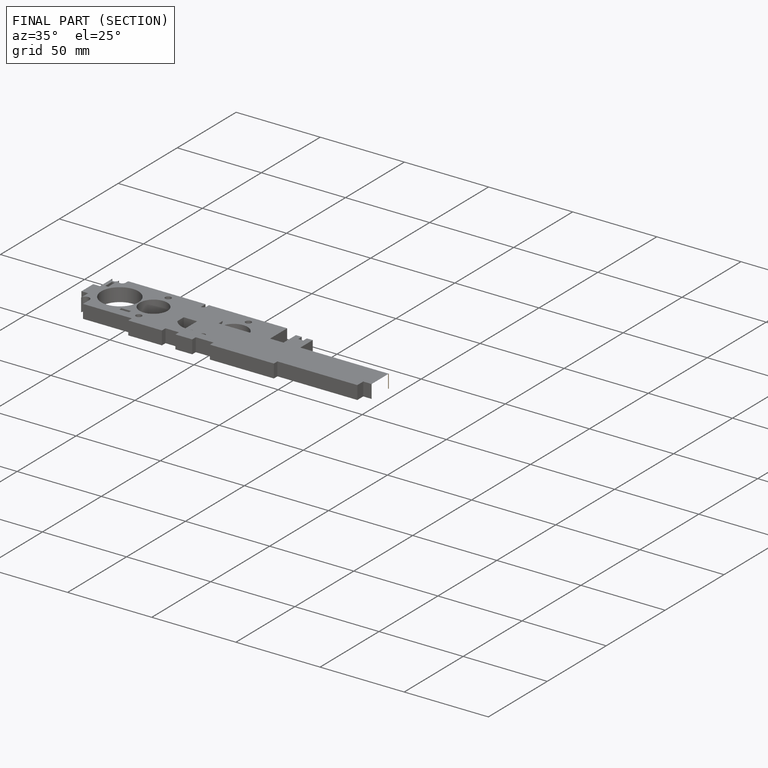
[diagram: finished part — half-section view (interior)]
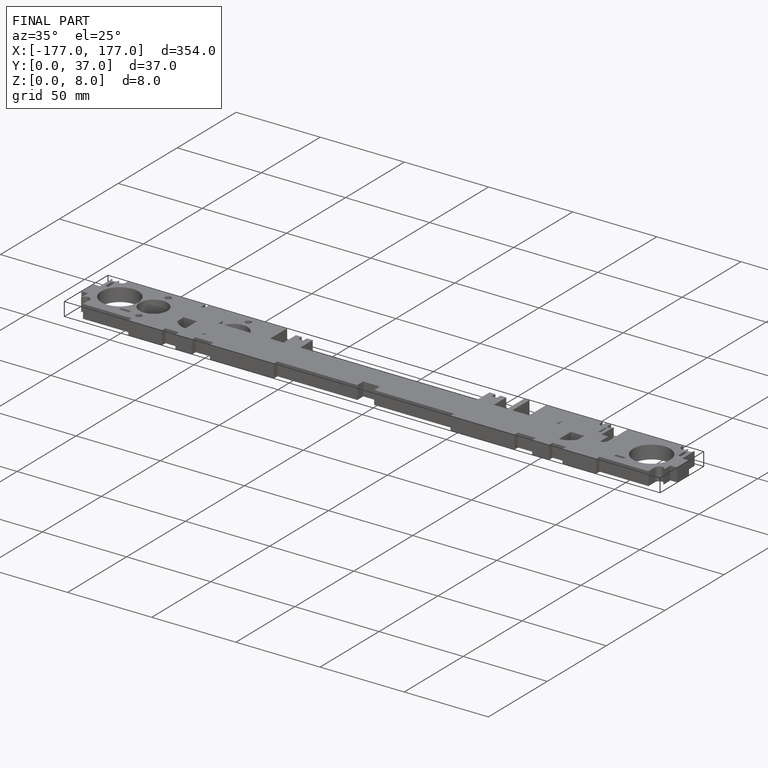
[diagram: finished part — iso view with bounding-box wireframe]
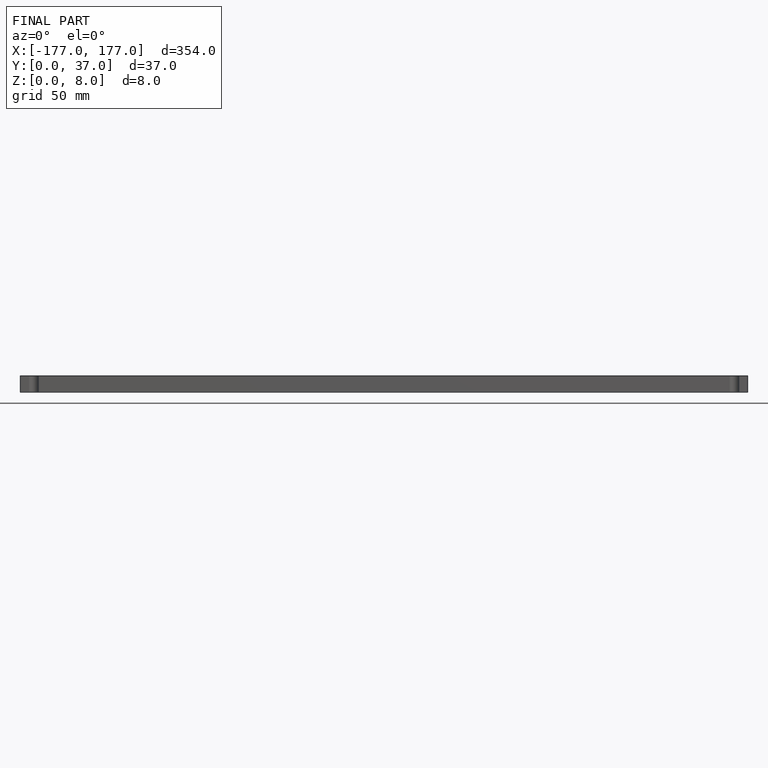
[diagram: finished part — front view with bounding-box wireframe]
